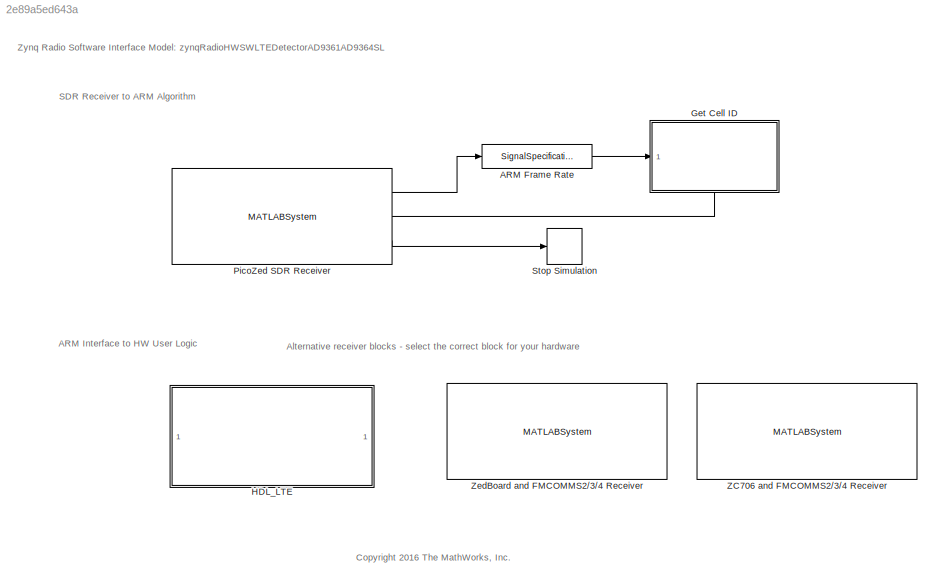
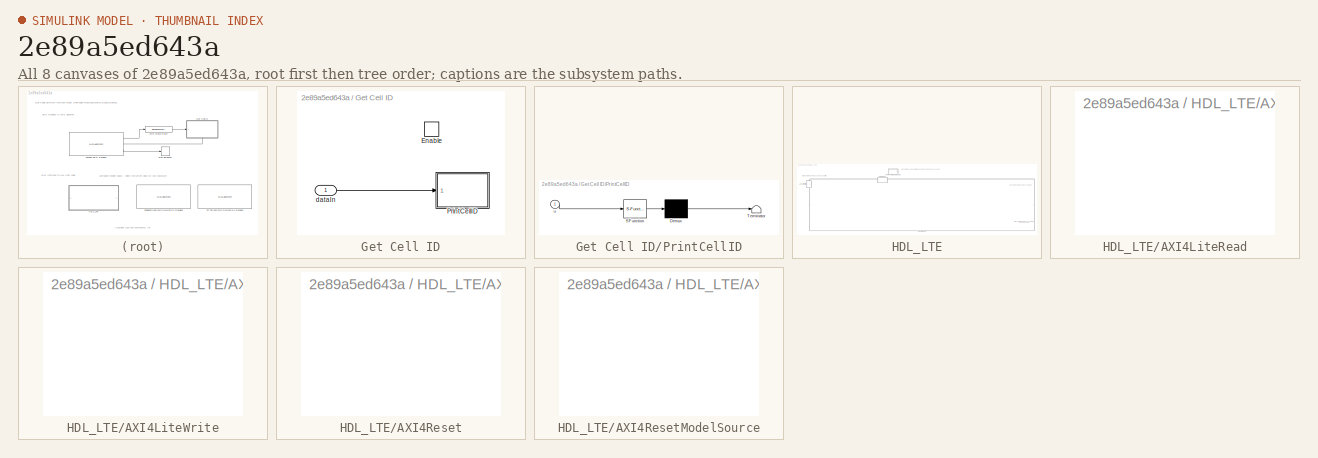
[diagram: thumbnail index - all 8 canvases of the model, root first then tree order]
MODEL slx_2e89a5ed643a
KIND model
CONFIG AbsTol = auto
CONFIG FixedStep = auto
CONFIG InitFcn = simParams = hdlcoder_lteofdm_modDetectref_init;\nsimParams = hdlcoder_lteofdm_modDetecthdl_init(simParams);\nload('zynqRadioLTETransmitData');
CONFIG MaxStep = auto
CONFIG MinStep = auto
CONFIG RelTol = 1e-3
CONFIG SampleTimeConstraint = Unconstrained
CONFIG Solver = VariableStepAuto
CONFIG SolverMode = Auto
CONFIG SolverName = VariableStepAuto
CONFIG StartTime = 0.0
CONFIG StopTime = 10.0
BLOCK [SignalSpecification] ARM Frame Rate
  SampleTime = 1
BLOCK [SubSystem] Get Cell ID
  Ports = [1, 0, 1]
  RequestExecContextInheritance = off
  Variant = off
BLOCK [EnablePort] Get Cell ID/Enable
  Ports = []
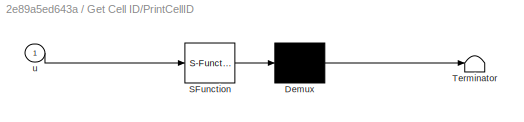
BLOCK [SubSystem] Get Cell ID/PrintCellID
  ErrorFcn = Stateflow.Translate.translate
  PermitHierarchicalResolution = ExplicitOnly
  Ports = [1]
  RequestExecContextInheritance = off
  SFBlockType = MATLAB Function
  TreatAsAtomicUnit = on
  Variant = off
BLOCK [Demux] Get Cell ID/PrintCellID/ Demux 
  Outputs = 1
  Ports = [1, 1]
BLOCK [S-Function] Get Cell ID/PrintCellID/ SFunction 
  EnableBusSupport = on
  FunctionName = sf_sfun
  PortCounts = [1 1]
  Ports = [1, 1]
  SFunctionDeploymentMode = off
  Tag = Stateflow S-Function zynqRadioHWSWLTEDetectorAD9361AD9364SL_interface 2
BLOCK [Terminator] Get Cell ID/PrintCellID/ Terminator 
BLOCK [Inport] Get Cell ID/PrintCellID/u
  IconDisplay = Port number
BLOCK [Inport] Get Cell ID/dataIn
  IconDisplay = Port number
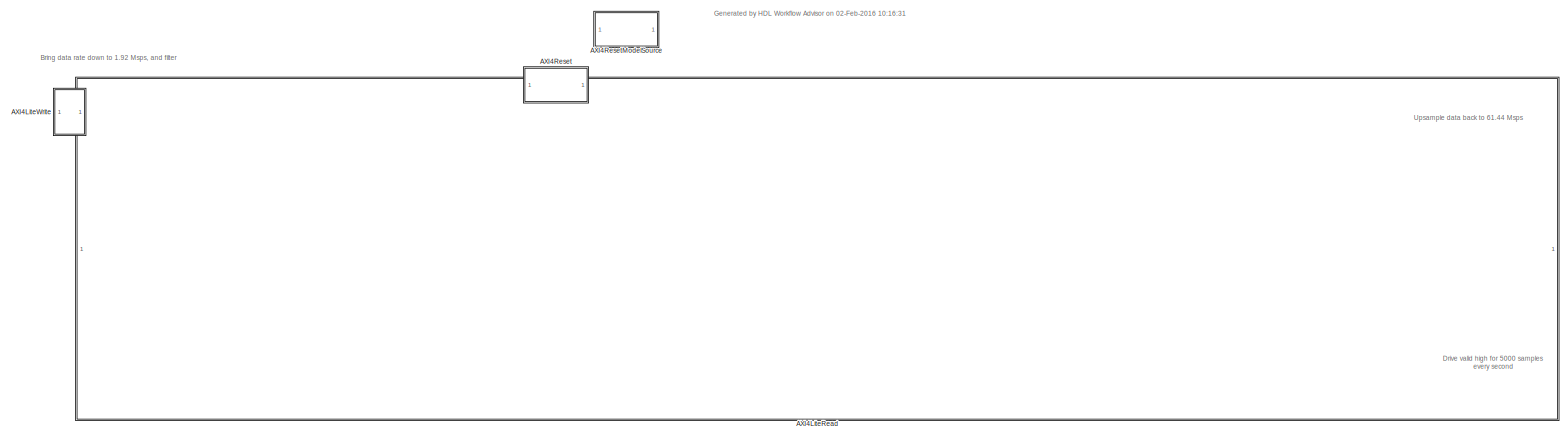
[diagram: HDL_LTE - part 1/1, most of the canvas]
BLOCK [SubSystem] HDL_LTE
  Ports = []
  RequestExecContextInheritance = off
  TreatAsAtomicUnit = on
  Variant = off
BLOCK [SubSystem] HDL_LTE/AXI4LiteRead
  Ports = []
  Priority = 10
  RequestExecContextInheritance = off
  Variant = off
BLOCK [SubSystem] HDL_LTE/AXI4LiteWrite
  Ports = []
  Priority = 1
  RequestExecContextInheritance = off
  Variant = off
BLOCK [SubSystem] HDL_LTE/AXI4Reset
  CopyFcn = cccopyfcn(gcb)
  OpenFcn = ccopenfcn('System Initialize Function')
  Ports = []
  RequestExecContextInheritance = off
  Variant = off
BLOCK [SubSystem] HDL_LTE/AXI4ResetModelSource
  CopyFcn = cccopyfcn(gcb)
  OpenFcn = ccopenfcn('Model Source')
  Ports = []
  RequestExecContextInheritance = off
  Variant = off
BLOCK [MATLABSystem] PicoZed SDR Receiver
  AnalogFilterCutoff = [ 2560000; 2560000 ]
  BISTChannelMask = 0
  BISTLoopbackConfig = No Loopback
  BISTPRBSMode = PRBS Disable
  BISTToneFrequency = F/32
  BISTToneLevel = -6
  BISTToneMode = Tone Disable
  BasebandSampleRate = 61.44e6
  BypassUserLogic = off
  CenterFrequency = 816e6
  CenterFrequencySource = Dialog
  ChannelMapping = 1
  DMATimeoutValue = 1
  DataIsComplex = on
  EnableBasebandDCTracking = on
  EnableBurstMode = off
  EnableQuadratureTracking = on
  EnableRFDCTracking = on
  FIRCoefficientSize = [ 128; 128 ]
  FIRCoefficients = [ 111, -87, 147, -127, -18, -286, -312, -555, -601, -722, -642, -555, -303, -66, 221, 393, 488, 403, 219, -74, -343, -550, -582, -450, -146, 221, 569, 759, 735, 463, 20, -487, -885, -1048, -883, -418, 243, 897, 1340, 1394, 1002, 228, -715, -1549, -1980, -1819, -1028, 217, 1583, 2635, 2980, 2377, 853, -1275, -3435, -4926, -5080, -3454, 40, 5065, 10903, 16581, 21085, 23573, 23573, 21085, 16581, 1090...<+1096ch>
  FIRDecimInterpFactor = [ 4; 4 ]
  FIRGain = [ 0; -12 ]
  FilterDesignTypeForRx = DefaultFilter
  FilterDesignTypeForTx = DefaultFilterFromOther
  FilterPathRates = [ 737280000, 184320000, 61440000, 30720000, 15360000, 3840000; 737280000, 184320000, 61440000, 30720000, 15360000, 3840000 ]
  Gain = 1
  GainSource = AGC Slow Attack
  IPAddress = 192.168.3.2
  InitFcn = sdr.internal.registerBlocks(gcb, 'xpicozedsdr');
  LostSamplesOutputPort = on
  MaskDisplay = disp(['PicoZed SDR' char(10) 'ARM-FPGA Interface']);\nport_label('output',1,'data');\nport_label('output',2,'data valid');\nport_label('output',3,'overflow');
  MaskType = comm.internal.SDRRxPicoZedSDRSL
  NumFramesInBurst = 20
  OutputDataType = int16
  Ports = [0, 3]
  RSSIOutputPort = off
  SamplesPerFrame = 5000
  ShowAdvancedProperties = on
  ShowInternalProperties = off
  SimulateUsing = Code generation
  SourceConfiguration1 = 1023
  SourceSelect = RF data
  System = comm.internal.SDRRxPicoZedSDRSL
  blockMode = Codegen
  ctrlUDPPort = -1
  dataUDPPort = -1
  sdrExecutionMode = HW
  subDeviceList = zynqReceiver
BLOCK [Stop] Stop Simulation
BLOCK [MATLABSystem] ZC706 and FMCOMMS2//3//4 Receiver
  AnalogFilterCutoff = [3152524;3161715]
  BISTChannelMask = 0
  BISTLoopbackConfig = No Loopback
  BISTPRBSMode = PRBS Disable
  BISTToneFrequency = F/32
  BISTToneLevel = -6
  BISTToneMode = Tone Disable
  BasebandSampleRate = 61.44e6
  BypassUserLogic = off
  CenterFrequency = 816e6
  CenterFrequencySource = Dialog
  ChannelMapping = 1
  Commented = on
  DMATimeoutValue = 1
  DataIsComplex = on
  EnableBasebandDCTracking = on
  EnableBurstMode = off
  EnableQuadratureTracking = on
  EnableRFDCTracking = on
  FIRCoefficientSize = [128;128]
  FIRCoefficients = [55 -54 42 -126 -123 -317 -399 -581 -646 -711 -634 -507 -263 -10 255 424 492 401 201 -84 -352 -540 -566 -423 -126 234 562 738 701 429 -5 -490 -866 -1007 -834 -372 266 891 1301 1334 936 178 -733 -1524 -1917 -1731 -944 274 1590 2585 2881 2255 741 -1344 -3435 -4850 -4942 -3285 197 5169 10923 16509 20932 23375 23375 20932 16509 10923 5169 197 -3285 -4942 -4850 -3435 -1344 741 2255 2881 2585 1590 274 -...<+833ch>
  FIRDecimInterpFactor = [4;4]
  FIRGain = [0;-12]
  FilterDesignTypeForRx = DefaultFilter
  FilterDesignTypeForTx = DefaultFilterFromOther
  FilterPathRates = [983040000 122880000 61440000 30720000 15360000 3840000;983040000 122880000 61440000 30720000 15360000 3840000]
  Gain = 1
  GainSource = AGC Slow Attack
  IPAddress = 192.168.3.2
  InitFcn = sdr.internal.registerBlocks(gcb, 'xzc706afmc3');
  LostSamplesOutputPort = on
  MaskDisplay = disp(['ZC706 and FMCOMMS2/3/4' char(10) 'ARM-FPGA Interface']);\nport_label('output',1,'data');\nport_label('output',2,'data valid');\nport_label('output',3,'overflow');
  MaskType = comm.internal.SDRRxZC706FMC234SL
  NumFramesInBurst = 20
  OutputDataType = int16
  Ports = [0, 3]
  RSSIOutputPort = off
  SamplesPerFrame = 5000
  ShowAdvancedProperties = on
  ShowInternalProperties = off
  SimulateUsing = Code generation
  SourceConfiguration1 = 1023
  SourceSelect = RF data
  System = comm.internal.SDRRxZC706FMC234SL
  blockMode = Codegen
  ctrlUDPPort = -1
  dataUDPPort = -1
  sdrExecutionMode = HW
  subDeviceList = zynqReceiver
BLOCK [MATLABSystem] ZedBoard and FMCOMMS2//3//4 Receiver
  AnalogFilterCutoff = [ 2560000; 2560000 ]
  BISTChannelMask = 0
  BISTLoopbackConfig = No Loopback
  BISTPRBSMode = PRBS Disable
  BISTToneFrequency = F/32
  BISTToneLevel = -6
  BISTToneMode = Tone Disable
  BasebandSampleRate = 61.44e6
  BypassUserLogic = off
  CenterFrequency = 816e6
  CenterFrequencySource = Dialog
  ChannelMapping = 1
  Commented = on
  DMATimeoutValue = 1
  DataIsComplex = on
  EnableBasebandDCTracking = on
  EnableBurstMode = off
  EnableQuadratureTracking = on
  EnableRFDCTracking = on
  FIRCoefficientSize = [ 128; 128 ]
  FIRCoefficients = [ 111, -87, 147, -127, -18, -286, -312, -555, -601, -722, -642, -555, -303, -66, 221, 393, 488, 403, 219, -74, -343, -550, -582, -450, -146, 221, 569, 759, 735, 463, 20, -487, -885, -1048, -883, -418, 243, 897, 1340, 1394, 1002, 228, -715, -1549, -1980, -1819, -1028, 217, 1583, 2635, 2980, 2377, 853, -1275, -3435, -4926, -5080, -3454, 40, 5065, 10903, 16581, 21085, 23573, 23573, 21085, 16581, 1090...<+1096ch>
  FIRDecimInterpFactor = [ 4; 4 ]
  FIRGain = [ 0; -12 ]
  FilterDesignTypeForRx = DefaultFilter
  FilterDesignTypeForTx = DefaultFilterFromOther
  FilterPathRates = [ 737280000, 184320000, 61440000, 30720000, 15360000, 3840000; 737280000, 184320000, 61440000, 30720000, 15360000, 3840000 ]
  Gain = 1
  GainSource = AGC Slow Attack
  IPAddress = 192.168.3.2
  InitFcn = sdr.internal.registerBlocks(gcb, 'xzedboardafmc3');
  LostSamplesOutputPort = off
  MaskDisplay = disp(['ZedBoard and FMCOMMS2/3/4' char(10) 'ARM-FPGA Interface']);\nport_label('output',1,'data');\nport_label('output',2,'data valid');\nport_label('output',3,'overflow');
  MaskType = comm.internal.SDRRxZedBoardFMC234SL
  NumFramesInBurst = 20
  OutputDataType = int16
  Ports = [0, 3]
  RSSIOutputPort = off
  SamplesPerFrame = 5000
  ShowAdvancedProperties = on
  ShowInternalProperties = off
  SimulateUsing = Code generation
  SourceConfiguration1 = 1023
  SourceSelect = RF data
  System = comm.internal.SDRRxZedBoardFMC234SL
  blockMode = Codegen
  ctrlUDPPort = -1
  dataUDPPort = -1
  sdrExecutionMode = HW
  subDeviceList = zynqReceiver
ANNOTATION (root): <copyright redacted>
ANNOTATION (root): ARM Interface to HW User Logic
ANNOTATION (root): Alternative receiver blocks - select the correct block for your hardware
ANNOTATION (root): SDR Receiver to ARM Algorithm
ANNOTATION (root): Zynq Radio Software Interface Model: zynqRadioHWSWLTEDetectorAD9361AD9364SL
ANNOTATION HDL_LTE: Bring data rate down to 1.92 Msps, and filter
ANNOTATION HDL_LTE: Drive valid high for 5000 samples every second
ANNOTATION HDL_LTE: Generated by HDL Workflow Advisor on 02-Feb-2016 10:16:31
ANNOTATION HDL_LTE: Upsample data back to 61.44 Msps
LINE ARM Frame Rate:1 -> Get Cell ID:1
LINE Get Cell ID/dataIn:1 -> Get Cell ID/PrintCellID:1
LINE PicoZed SDR Receiver:1 -> ARM Frame Rate:1
LINE PicoZed SDR Receiver:2 -> Get Cell ID:enable
LINE PicoZed SDR Receiver:3 -> Stop Simulation:1
CHART Get Cell ID/PrintCellID states=1 transitions=1
  STATE_LABEL 'eML_blk_kernel()'
  STATE_LABEL 'SCRIPT:\nfunction printCellID(u)\n%#codegen\n\npersistent prevCellID;\nif isempty(prevCellID)\n    prevCellID = int16(0);\nend\n\n% Create empty 2-element array of zeros\nb = fi(complex(zeros(2,1), zeros(2,1)),1,16,0);\n\n% Get 2 fields from array (samples are interleaved, and upsampled 32x, so\n% get last sample, and the 33rd last...\nb(1) = fi(u(end),1,16,0);\nb(2) = fi(u(end-33),1,16,0);\n\n% Determine which is...<+921ch>'
